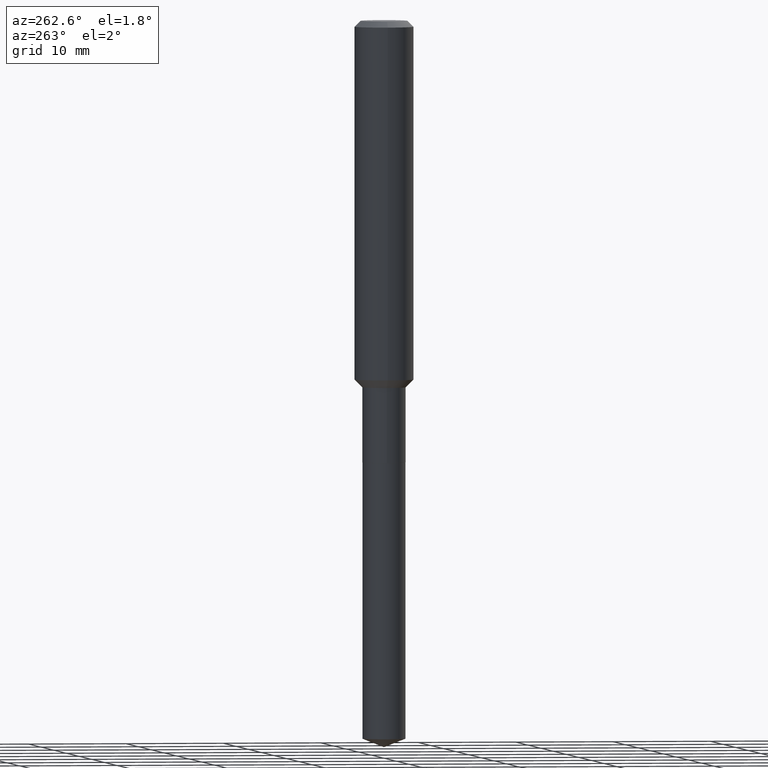
[diagram: clean part render]
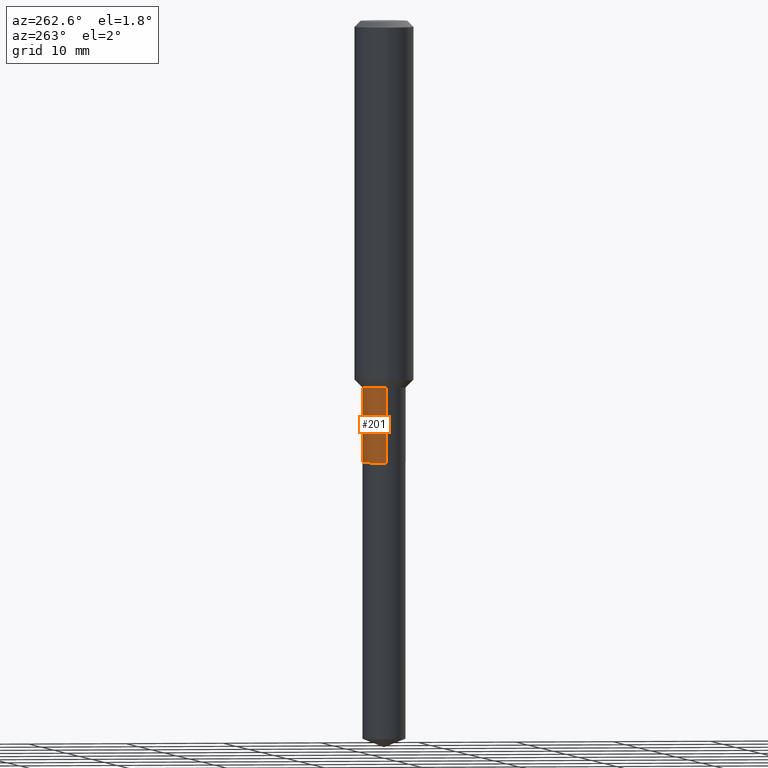
[diagram: same view with one face highlighted and labeled with its STEP entity id]
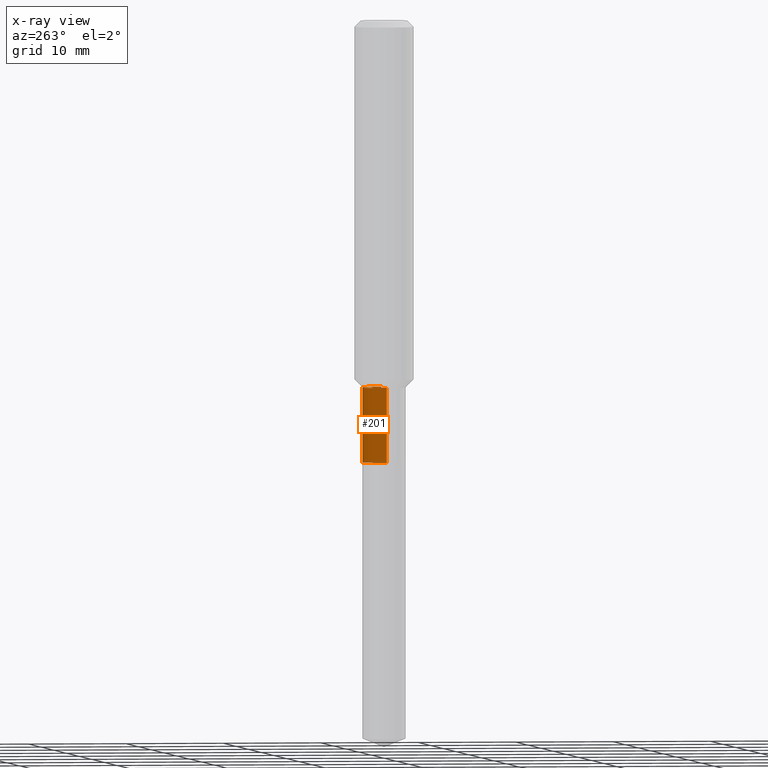
[diagram: x-ray of the same camera — body ghosted, the highlighted face saturated]
A machine part, auxiliary view. The second image highlights one B-rep face of the part: STEP entity #201.
The next image is the same camera in x-ray: the body ghosted, the highlighted face saturated — about 0% of this face is hidden behind the body in this view.
In plain terms, the highlighted cylindrical surface (edge-blend (fillet) strip) has radius 2.1996 mm, axis along (-0, 0, 1).
Its self-contained STEP definition (entity closure, byte-faithful):
#5 = ORIENTED_EDGE ( 'NONE', *, *, #488, .T. ) ;
#18 = DIRECTION ( 'NONE',  ( -2.445468806185136597E-29, 3.491481338843145583E-15, 1.000000000000000000 ) ) ;
#20 = CYLINDRICAL_SURFACE ( 'NONE', #215, 0.08659999999999996867 ) ;
#24 = CARTESIAN_POINT ( 'NONE',  ( 3.594839145092149699E-29, -5.132477568099422441E-15, -1.469999999999999529 ) ) ;
#28 = EDGE_CURVE ( 'NONE', #101, #294, #234, .T. ) ;
#34 = ORIENTED_EDGE ( 'NONE', *, *, #233, .T. ) ;
#55 = LINE ( 'NONE', #204, #412 ) ;
#58 = VERTEX_POINT ( 'NONE', #421 ) ;
#59 = DIRECTION ( 'NONE',  ( -2.445468806185136877E-29, 3.491481338843145188E-15, 1.000000000000000000 ) ) ;
#82 = EDGE_CURVE ( 'NONE', #294, #414, #278, .T. ) ;
#101 = VERTEX_POINT ( 'NONE', #396 ) ;
#120 = CARTESIAN_POINT ( 'NONE',  ( 4.330436161992639608E-29, -6.182715154823442375E-15, -1.770799999999999930 ) ) ;
#125 = DIRECTION ( 'NONE',  ( -2.445468806185136597E-29, 3.491481338843145583E-15, 1.000000000000000000 ) ) ;
#131 = DIRECTION ( 'NONE',  ( 1.000000000000000000, -6.982962677686269866E-15, 0.000000000000000000 ) ) ;
#167 = DIRECTION ( 'NONE',  ( -2.445468806185136877E-29, 3.491481338843145188E-15, 1.000000000000000000 ) ) ;
#198 = CARTESIAN_POINT ( 'NONE',  ( -0.08659999999999995479, -5.042266352293185968E-15, -1.469999999999999529 ) ) ;
#200 = VECTOR ( 'NONE', #59, 39.37007874015748143 ) ;
#201 = ADVANCED_FACE ( 'NONE', ( #302 ), #20, .T. ) ;
#204 = CARTESIAN_POINT ( 'NONE',  ( -0.08659999999999996867, 6.153300091682465383E-16, -4.259797788160746705E-30 ) ) ;
#215 = AXIS2_PLACEMENT_3D ( 'NONE', #469, #125, #317 ) ;
#233 = EDGE_CURVE ( 'NONE', #101, #58, #394, .T. ) ;
#234 = LINE ( 'NONE', #391, #200 ) ;
#270 = CARTESIAN_POINT ( 'NONE',  ( 0.08659999999999995479, -5.737202135987053365E-15, -1.469999999999999529 ) ) ;
#278 = CIRCLE ( 'NONE', #353, 0.08659999999999995479 ) ;
#294 = VERTEX_POINT ( 'NONE', #270 ) ;
#302 = FACE_OUTER_BOUND ( 'NONE', #483, .T. ) ;
#310 = DIRECTION ( 'NONE',  ( 1.000000000000000000, -6.982962677686272233E-15, 0.000000000000000000 ) ) ;
#317 = DIRECTION ( 'NONE',  ( 1.000000000000000000, -6.982962677686267499E-15, 4.876176775795936353E-29 ) ) ;
#320 = DIRECTION ( 'NONE',  ( -2.445468806185136597E-29, 3.491481338843145583E-15, 1.000000000000000000 ) ) ;
#353 = AXIS2_PLACEMENT_3D ( 'NONE', #24, #320, #310 ) ;
#386 = AXIS2_PLACEMENT_3D ( 'NONE', #120, #18, #131 ) ;
#391 = CARTESIAN_POINT ( 'NONE',  ( 0.08659999999999996867, -6.047245678876305299E-16, 4.222769087839279152E-30 ) ) ;
#394 = CIRCLE ( 'NONE', #386, 0.08659999999999998255 ) ;
#396 = CARTESIAN_POINT ( 'NONE',  ( 0.08659999999999998255, -6.787439722711072510E-15, -1.770799999999999930 ) ) ;
#412 = VECTOR ( 'NONE', #167, 39.37007874015748143 ) ;
#414 = VERTEX_POINT ( 'NONE', #198 ) ;
#421 = CARTESIAN_POINT ( 'NONE',  ( -0.08659999999999998255, -5.042266352293185968E-15, -1.770799999999999930 ) ) ;
#464 = ORIENTED_EDGE ( 'NONE', *, *, #82, .F. ) ;
#469 = CARTESIAN_POINT ( 'NONE',  ( 0.000000000000000000, 0.000000000000000000, 0.000000000000000000 ) ) ;
#478 = ORIENTED_EDGE ( 'NONE', *, *, #28, .F. ) ;
#483 = EDGE_LOOP ( 'NONE', ( #34, #5, #464, #478 ) ) ;
#488 = EDGE_CURVE ( 'NONE', #58, #414, #55, .T. ) ;